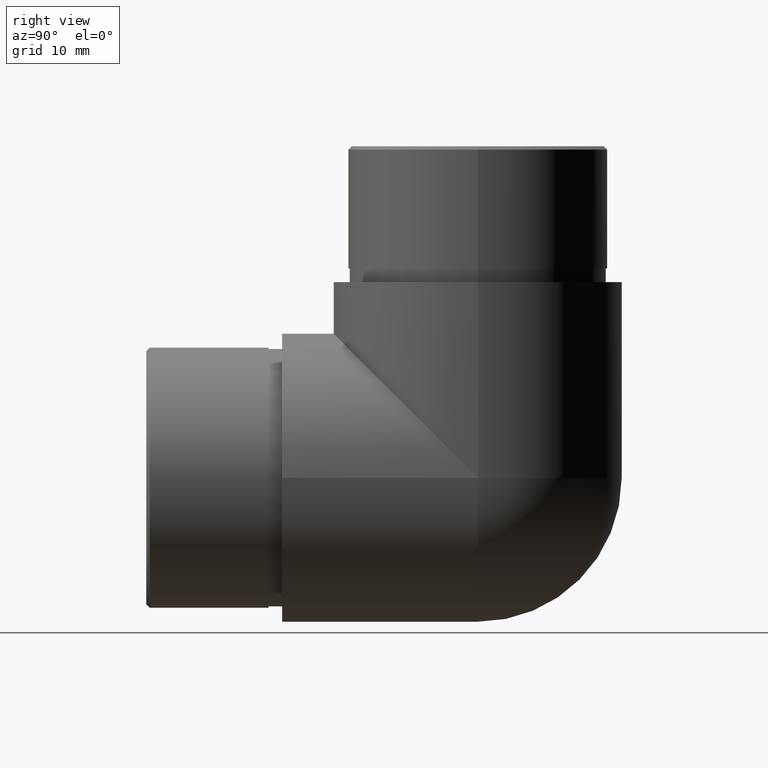
[diagram: clean part render]
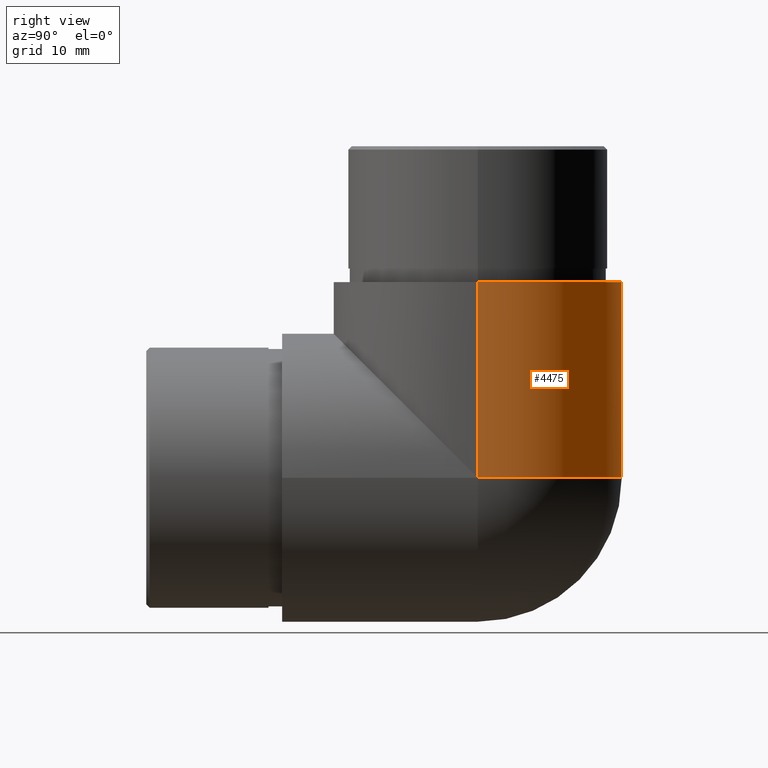
[diagram: same view with one face highlighted and labeled with its STEP entity id]
A machine part, right view. The second image highlights one B-rep face of the part: STEP entity #4475.
In plain terms, the highlighted cylindrical surface (partial cylindrical patch) has radius 21.2 mm, axis along (0, 0, 1).
Its self-contained STEP definition (entity closure, byte-faithful):
#96 = DIRECTION ( 'NONE',  ( 3.273063162220390800E-016, 0.0000000000000000000, -1.000000000000000000 ) ) ;
#114 = CARTESIAN_POINT ( 'NONE',  ( 21.19999999999999600, 28.80000000000000800, 50.00000000000000000 ) ) ;
#127 = ORIENTED_EDGE ( 'NONE', *, *, #11224, .F. ) ;
#299 = VECTOR ( 'NONE', #5421, 1000.000000000000000 ) ;
#441 = CARTESIAN_POINT ( 'NONE',  ( -3.469446951953614200E-015, 28.80000000000000800, 1.818672477690387500 ) ) ;
#477 = VERTEX_POINT ( 'NONE', #114 ) ;
#563 = VECTOR ( 'NONE', #10610, 1000.000000000000000 ) ;
#902 = CIRCLE ( 'NONE', #1634, 21.19999999999999900 ) ;
#906 = LINE ( 'NONE', #6345, #299 ) ;
#1634 = AXIS2_PLACEMENT_3D ( 'NONE', #6817, #96, #3937 ) ;
#1911 = EDGE_CURVE ( 'NONE', #8252, #477, #906, .T. ) ;
#2030 = VERTEX_POINT ( 'NONE', #2787 ) ;
#2143 = CARTESIAN_POINT ( 'NONE',  ( -6.938893903907228400E-015, 50.00000000000000000, 21.19999999999999600 ) ) ;
#2423 = CARTESIAN_POINT ( 'NONE',  ( -3.469446951953614200E-015, 28.80000000000000800, 50.00000000000000000 ) ) ;
#2642 = CIRCLE ( 'NONE', #8896, 21.19999999999999900 ) ;
#2787 = CARTESIAN_POINT ( 'NONE',  ( -3.469446951953614200E-015, 50.00000000000000000, 50.00000000000000000 ) ) ;
#2957 = CARTESIAN_POINT ( 'NONE',  ( 21.19999999999999600, 28.80000000000001100, 21.19999999999999900 ) ) ;
#3082 = EDGE_LOOP ( 'NONE', ( #5563, #11672, #127, #3675 ) ) ;
#3345 = DIRECTION ( 'NONE',  ( 1.000000000000000000, 0.0000000000000000000, 0.0000000000000000000 ) ) ;
#3675 = ORIENTED_EDGE ( 'NONE', *, *, #1911, .F. ) ;
#3937 = DIRECTION ( 'NONE',  ( -1.000000000000000000, 0.0000000000000000000, -3.273063162220390800E-016 ) ) ;
#4475 = ADVANCED_FACE ( 'NONE', ( #4643 ), #8064, .T. ) ;
#4643 = FACE_OUTER_BOUND ( 'NONE', #3082, .T. ) ;
#4828 = AXIS2_PLACEMENT_3D ( 'NONE', #441, #5240, #5287 ) ;
#5180 = EDGE_CURVE ( 'NONE', #9139, #8252, #902, .T. ) ;
#5240 = DIRECTION ( 'NONE',  ( 0.0000000000000000000, 0.0000000000000000000, 1.000000000000000000 ) ) ;
#5287 = DIRECTION ( 'NONE',  ( 1.000000000000000000, 0.0000000000000000000, 0.0000000000000000000 ) ) ;
#5421 = DIRECTION ( 'NONE',  ( 0.0000000000000000000, 0.0000000000000000000, 1.000000000000000000 ) ) ;
#5563 = ORIENTED_EDGE ( 'NONE', *, *, #5180, .F. ) ;
#6345 = CARTESIAN_POINT ( 'NONE',  ( 21.19999999999999600, 28.80000000000000800, 1.818672477690387500 ) ) ;
#6731 = CARTESIAN_POINT ( 'NONE',  ( 3.469446951953614200E-015, 50.00000000000000000, 2.063529856563289800E-015 ) ) ;
#6817 = CARTESIAN_POINT ( 'NONE',  ( -3.469446951953614200E-015, 28.80000000000000400, 21.19999999999999600 ) ) ;
#7983 = EDGE_CURVE ( 'NONE', #9139, #2030, #11736, .T. ) ;
#8064 = CYLINDRICAL_SURFACE ( 'NONE', #4828, 21.19999999999999900 ) ;
#8252 = VERTEX_POINT ( 'NONE', #2957 ) ;
#8896 = AXIS2_PLACEMENT_3D ( 'NONE', #2423, #9106, #3345 ) ;
#9106 = DIRECTION ( 'NONE',  ( 0.0000000000000000000, 0.0000000000000000000, 1.000000000000000000 ) ) ;
#9139 = VERTEX_POINT ( 'NONE', #2143 ) ;
#10610 = DIRECTION ( 'NONE',  ( 0.0000000000000000000, 0.0000000000000000000, 1.000000000000000000 ) ) ;
#11224 = EDGE_CURVE ( 'NONE', #477, #2030, #2642, .T. ) ;
#11672 = ORIENTED_EDGE ( 'NONE', *, *, #7983, .T. ) ;
#11736 = LINE ( 'NONE', #6731, #563 ) ;